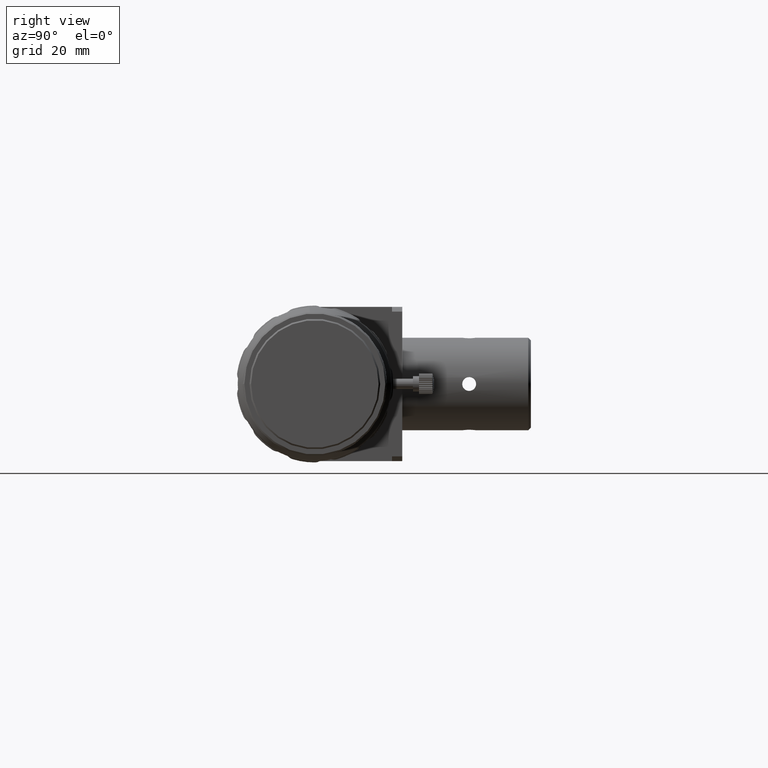
[diagram: clean part render]
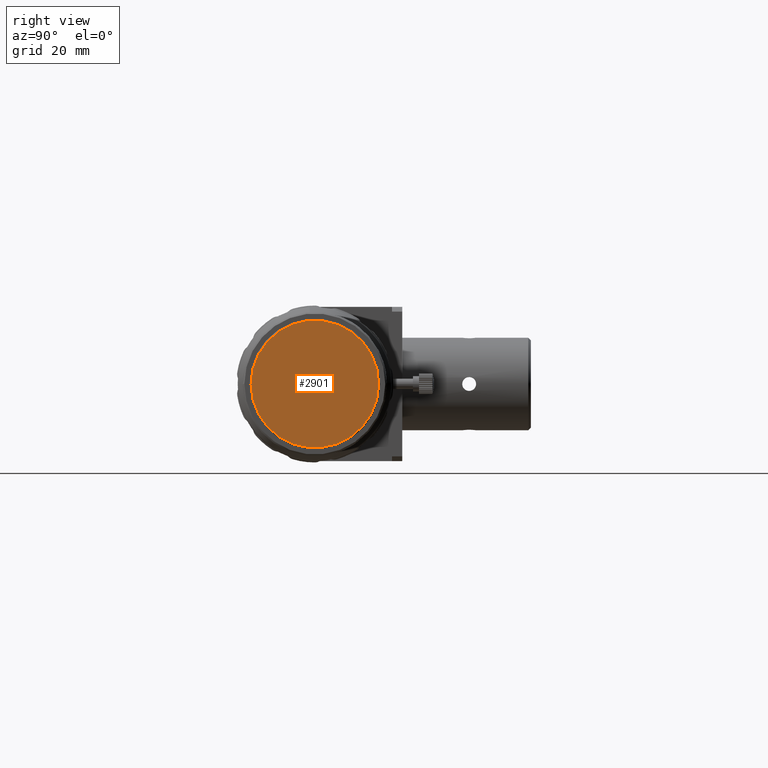
[diagram: same view with one face highlighted and labeled with its STEP entity id]
A machine part, right view. The second image highlights one B-rep face of the part: STEP entity #2901.
In plain terms, the highlighted planar face has unit normal (-1, 0, -0).
Its self-contained STEP definition (entity closure, byte-faithful):
#221 = CARTESIAN_POINT ( 'NONE',  ( 70.63827917272460866, 4.256274114061013229E-16, -2.895035857417957045E-15 ) ) ;
#319 = AXIS2_PLACEMENT_3D ( 'NONE', #5822, #2981, #5256 ) ;
#795 = ORIENTED_EDGE ( 'NONE', *, *, #3946, .F. ) ;
#1258 = FACE_OUTER_BOUND ( 'NONE', #5633, .T. ) ;
#1442 = DIRECTION ( 'NONE',  ( -1.119176436114071600E-15, -1.000000000000000000, 0.000000000000000000 ) ) ;
#2496 = DIRECTION ( 'NONE',  ( -1.000000000000000000, 1.472447755274239116E-15, -4.691007518048181346E-16 ) ) ;
#2901 = ADVANCED_FACE ( 'NONE', ( #1258 ), #3538, .F. ) ;
#2981 = DIRECTION ( 'NONE',  ( -1.000000000000000000, 3.688801789433243258E-16, -1.785482631856128716E-16 ) ) ;
#3538 = PLANE ( 'NONE',  #319 ) ;
#3946 = EDGE_CURVE ( 'NONE', #5771, #5771, #5815, .T. ) ;
#5256 = DIRECTION ( 'NONE',  ( -3.688801789433243258E-16, -1.000000000000000000, 0.000000000000000000 ) ) ;
#5633 = EDGE_LOOP ( 'NONE', ( #795 ) ) ;
#5771 = VERTEX_POINT ( 'NONE', #6097 ) ;
#5815 = CIRCLE ( 'NONE', #6774, 12.39999999999997193 ) ;
#5822 = CARTESIAN_POINT ( 'NONE',  ( 70.63827917272459445, -5.050069158203665864, 9.772246491844109428 ) ) ;
#6097 = CARTESIAN_POINT ( 'NONE',  ( 70.63827917272459445, -12.39999999999997193, -2.895035857417957045E-15 ) ) ;
#6774 = AXIS2_PLACEMENT_3D ( 'NONE', #221, #2496, #1442 ) ;